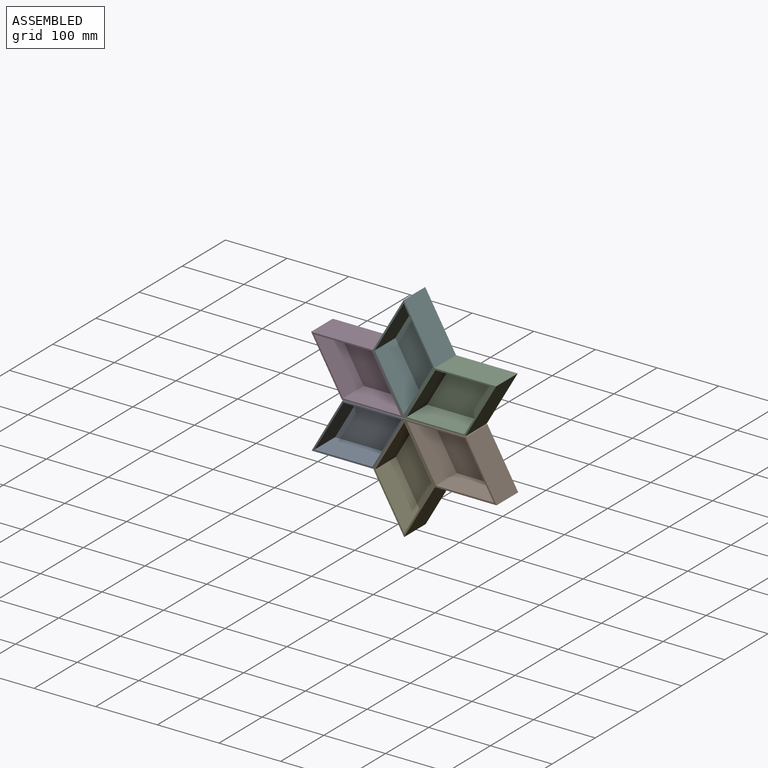
[diagram: assembled view]
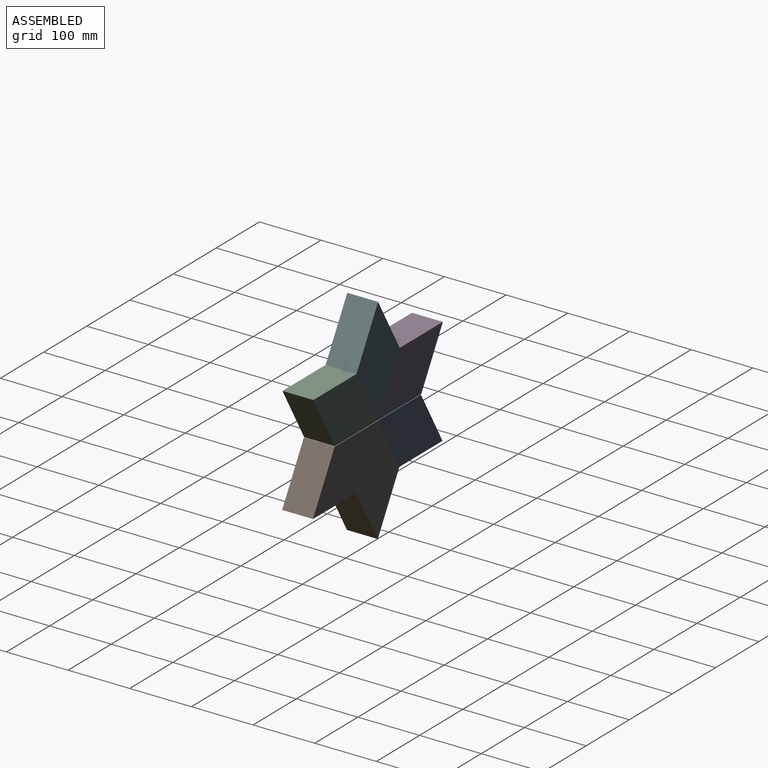
[diagram: assembled view, second angle]
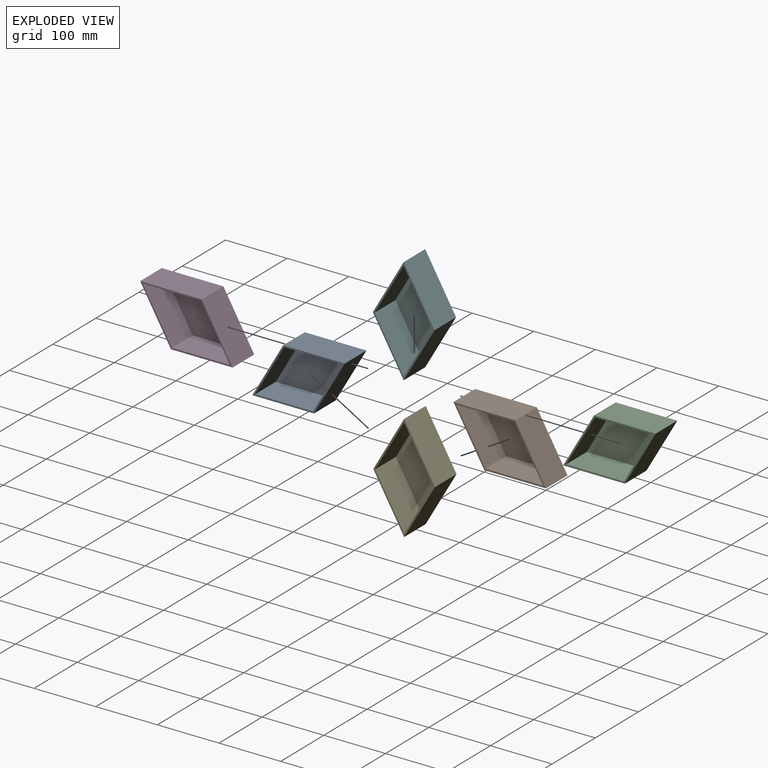
[diagram: exploded view]
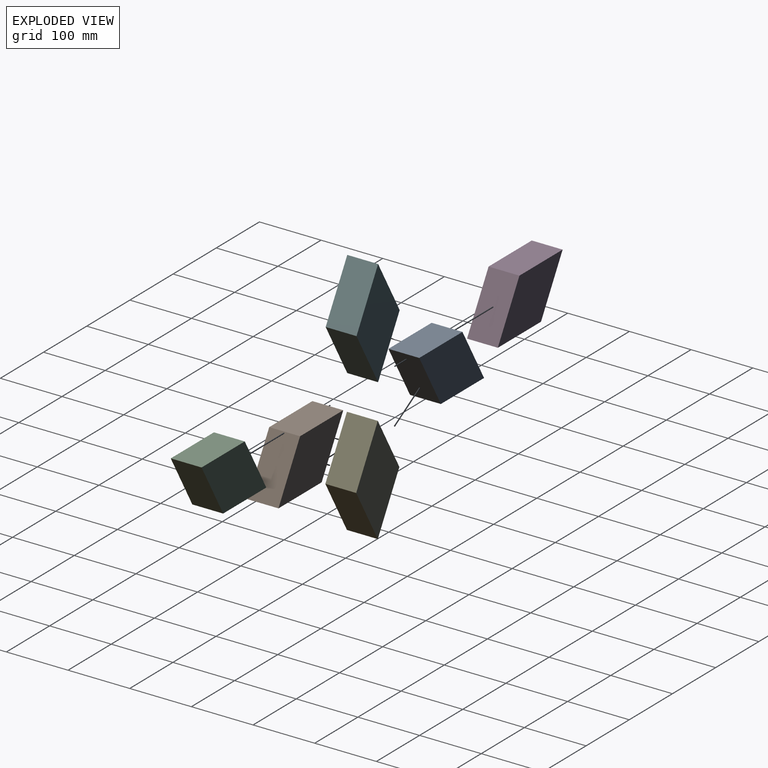
[diagram: exploded view, second angle]
ASSEMBLY  parts=6 mates=4
PART A: 11 faces, bbox 100x50x173.2 mm
  f0: plane 173.21x100mm, normal (0,-1,0), area 1008.1mm2, adj f1,f2,f3,f4,f6,f7,f8,f9
  f1: plane 86.6x50mm, normal (-0.87,0,0.5), area 5000mm2, adj f0,f2,f4,f5
  f2: plane 86.6x50mm, normal (-0.87,0,-0.5), area 5000mm2, adj f0,f1,f3,f5
  f3: plane 86.6x50mm, normal (0.87,0,-0.5), area 5000mm2, adj f0,f2,f4,f5
  f4: plane 86.6x50mm, normal (0.87,0,0.5), area 5000mm2, adj f0,f1,f3,f5
  f5: plane 173.21x100mm, normal (0,1,0), area 8660.3mm2, adj f1,f2,f3,f4
  f6: plane 81.41x48mm, normal (-0.87,0,-0.5), area 4512mm2, adj f0,f7,f9,f10
  f7: plane 81.41x48mm, normal (0.87,0,-0.5), area 4512mm2, adj f0,f6,f8,f10
  f8: plane 81.41x48mm, normal (0.87,0,0.5), area 4512mm2, adj f0,f7,f9,f10
  f9: plane 81.41x48mm, normal (-0.87,0,0.5), area 4512mm2, adj f0,f6,f8,f10
  f10: plane 162.81x94mm, normal (0,-1,0), area 7652.2mm2, adj f6,f7,f8,f9
PART B: same geometry as A
PART C: same geometry as A
PART D: same geometry as A
PART E: same geometry as A
PART F: same geometry as A
PLACE A rot(axis=(0,1,0),60deg) t=(-136.41,-40.78,-118.12)mm
PLACE B rot(axis=(0,1,0),120deg) t=(13.59,-40.78,-118.12)mm fixed
PLACE C rot(axis=(0,1,0),60deg) t=(12.83,-40.8,-30.61)mm fixed
PLACE D rot(axis=(0,-1,0),60deg) t=(-137.17,-40.8,-30.61)mm fixed
PLACE E t=(-61.41,-40.78,-161.42)mm fixed
PLACE F t=(-62.17,-40.8,12.69)mm fixed
MATE fastened E.f4 <-> B.f3  axis (0.87,0,0.5) through (-36.41,-15.78,-118.12)mm
MATE fastened A.f4 <-> E.f1  axis (0.87,0,-0.5) through (-86.41,-15.78,-118.12)mm
MATE fastened D.f3 <-> F.f2  axis (0.87,0,0.5) through (-87.17,-15.8,-30.61)mm
MATE fastened C.f2 <-> F.f3  axis (-0.87,0,0.5) through (-37.17,-15.8,-30.61)mm
